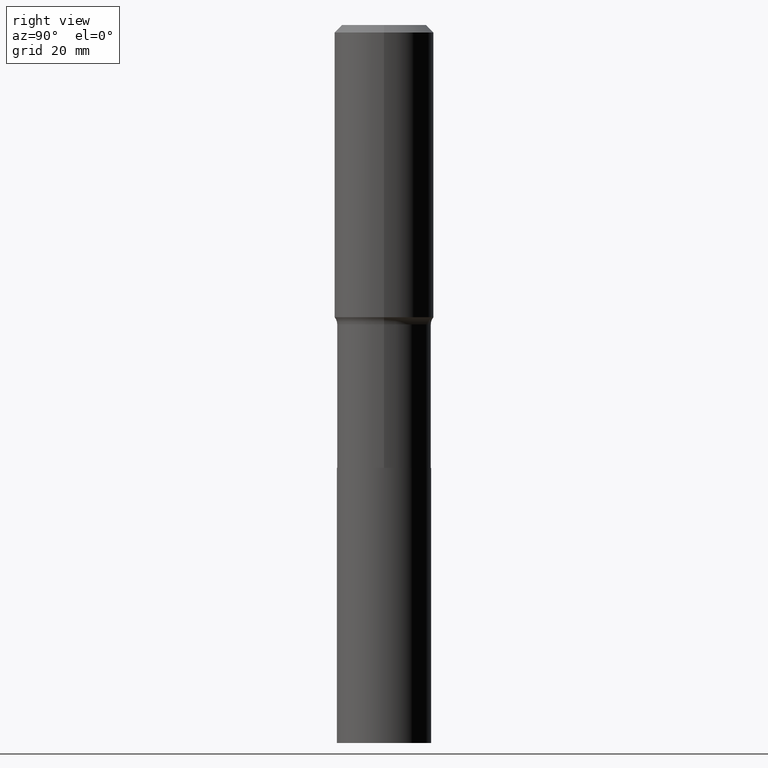
[diagram: clean part render]
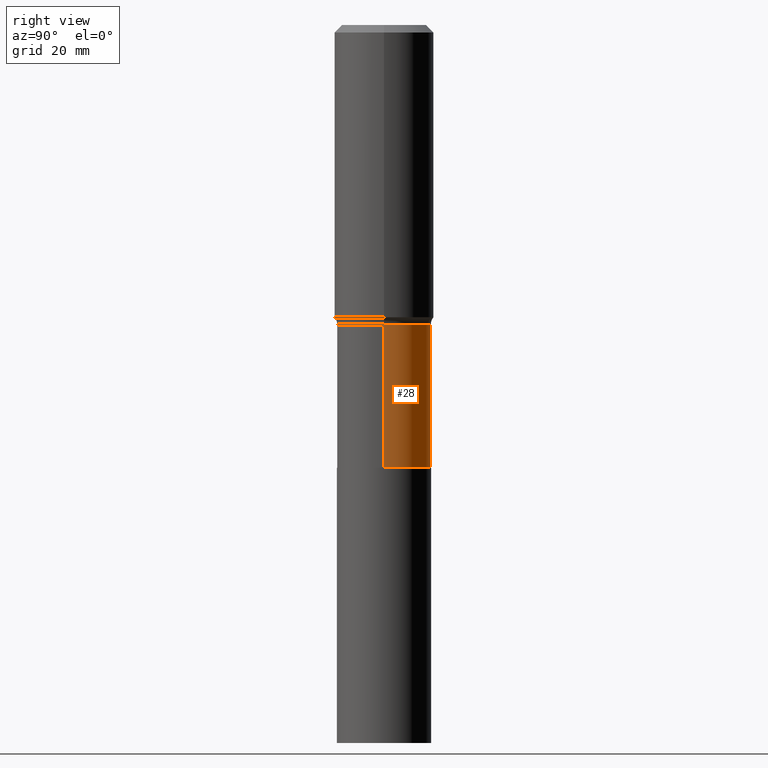
[diagram: same view with one face highlighted and labeled with its STEP entity id]
A machine part, right view. The second image highlights one B-rep face of the part: STEP entity #28.
In plain terms, the highlighted cylindrical surface (partial cylindrical patch) has radius 8.5331 mm, axis along (-0, 0, 1).
Its self-contained STEP definition (entity closure, byte-faithful):
#10 = VERTEX_POINT ( 'NONE', #69 ) ;
#20 = AXIS2_PLACEMENT_3D ( 'NONE', #209, #418, #353 ) ;
#28 = ADVANCED_FACE ( 'NONE', ( #463 ), #252, .T. ) ;
#31 = DIRECTION ( 'NONE',  ( -2.445468806185136877E-29, 3.491481338843145188E-15, 1.000000000000000000 ) ) ;
#34 = AXIS2_PLACEMENT_3D ( 'NONE', #442, #370, #229 ) ;
#64 = EDGE_CURVE ( 'NONE', #112, #270, #292, .T. ) ;
#68 = CARTESIAN_POINT ( 'NONE',  ( -0.3359499999999999154, -6.849470987056543290E-15, -2.134300000000000086 ) ) ;
#69 = CARTESIAN_POINT ( 'NONE',  ( -0.3359500000000000819, -6.849470987056542502E-15, -3.156600000000000072 ) ) ;
#76 = DIRECTION ( 'NONE',  ( -2.445468806185136877E-29, 3.491481338843145188E-15, 1.000000000000000000 ) ) ;
#104 = DIRECTION ( 'NONE',  ( -2.445468806185136597E-29, 3.491481338843145583E-15, 1.000000000000000000 ) ) ;
#110 = LINE ( 'NONE', #191, #329 ) ;
#112 = VERTEX_POINT ( 'NONE', #327 ) ;
#120 = CIRCLE ( 'NONE', #20, 0.3359499999999999154 ) ;
#127 = EDGE_LOOP ( 'NONE', ( #380, #228, #245, #204 ) ) ;
#135 = VECTOR ( 'NONE', #31, 39.37007874015748143 ) ;
#191 = CARTESIAN_POINT ( 'NONE',  ( -0.3359500000000000264, 2.387068320786056762E-15, -1.652516243571135534E-29 ) ) ;
#204 = ORIENTED_EDGE ( 'NONE', *, *, #64, .F. ) ;
#209 = CARTESIAN_POINT ( 'NONE',  ( 5.219364073040937564E-29, -7.451868621492925956E-15, -2.134300000000000086 ) ) ;
#214 = EDGE_CURVE ( 'NONE', #10, #340, #110, .T. ) ;
#228 = ORIENTED_EDGE ( 'NONE', *, *, #214, .T. ) ;
#229 = DIRECTION ( 'NONE',  ( 1.000000000000000000, -6.982962677686269866E-15, 0.000000000000000000 ) ) ;
#245 = ORIENTED_EDGE ( 'NONE', *, *, #323, .F. ) ;
#252 = CYLINDRICAL_SURFACE ( 'NONE', #281, 0.3359500000000000264 ) ;
#266 = CIRCLE ( 'NONE', #34, 0.3359500000000000819 ) ;
#270 = VERTEX_POINT ( 'NONE', #440 ) ;
#281 = AXIS2_PLACEMENT_3D ( 'NONE', #360, #104, #429 ) ;
#292 = LINE ( 'NONE', #364, #135 ) ;
#323 = EDGE_CURVE ( 'NONE', #270, #340, #120, .T. ) ;
#327 = CARTESIAN_POINT ( 'NONE',  ( 0.3359500000000000819, -1.336713630576097584E-14, -3.156600000000000072 ) ) ;
#329 = VECTOR ( 'NONE', #76, 39.37007874015748143 ) ;
#340 = VERTEX_POINT ( 'NONE', #68 ) ;
#353 = DIRECTION ( 'NONE',  ( 1.000000000000000000, -6.982962677686267499E-15, 0.000000000000000000 ) ) ;
#360 = CARTESIAN_POINT ( 'NONE',  ( 0.000000000000000000, 0.000000000000000000, 0.000000000000000000 ) ) ;
#364 = CARTESIAN_POINT ( 'NONE',  ( 0.3359500000000000264, -2.345926311568701298E-15, 1.638151587828644602E-29 ) ) ;
#370 = DIRECTION ( 'NONE',  ( -2.445468806185136597E-29, 3.491481338843145583E-15, 1.000000000000000000 ) ) ;
#380 = ORIENTED_EDGE ( 'NONE', *, *, #435, .T. ) ;
#418 = DIRECTION ( 'NONE',  ( -2.445468806185136597E-29, 3.491481338843145583E-15, 1.000000000000000000 ) ) ;
#429 = DIRECTION ( 'NONE',  ( 1.000000000000000000, -6.982962677686265922E-15, 4.876176775795935232E-29 ) ) ;
#435 = EDGE_CURVE ( 'NONE', #112, #10, #266, .T. ) ;
#440 = CARTESIAN_POINT ( 'NONE',  ( 0.3359499999999999154, -9.797794933061626860E-15, -2.134300000000000086 ) ) ;
#442 = CARTESIAN_POINT ( 'NONE',  ( 7.719366833604001448E-29, -1.102120999419227336E-14, -3.156600000000000072 ) ) ;
#463 = FACE_OUTER_BOUND ( 'NONE', #127, .T. ) ;